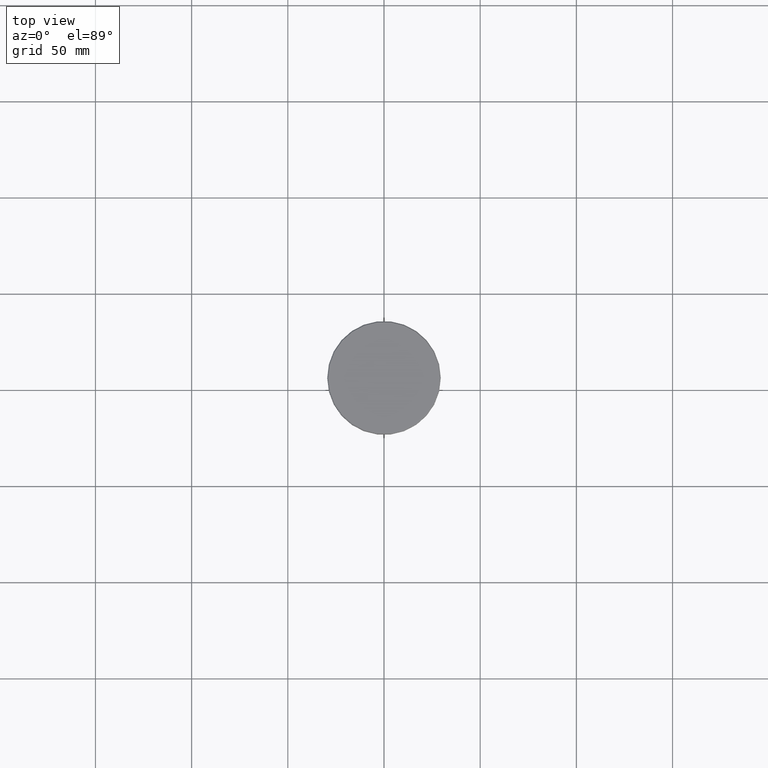
[diagram: clean part render]
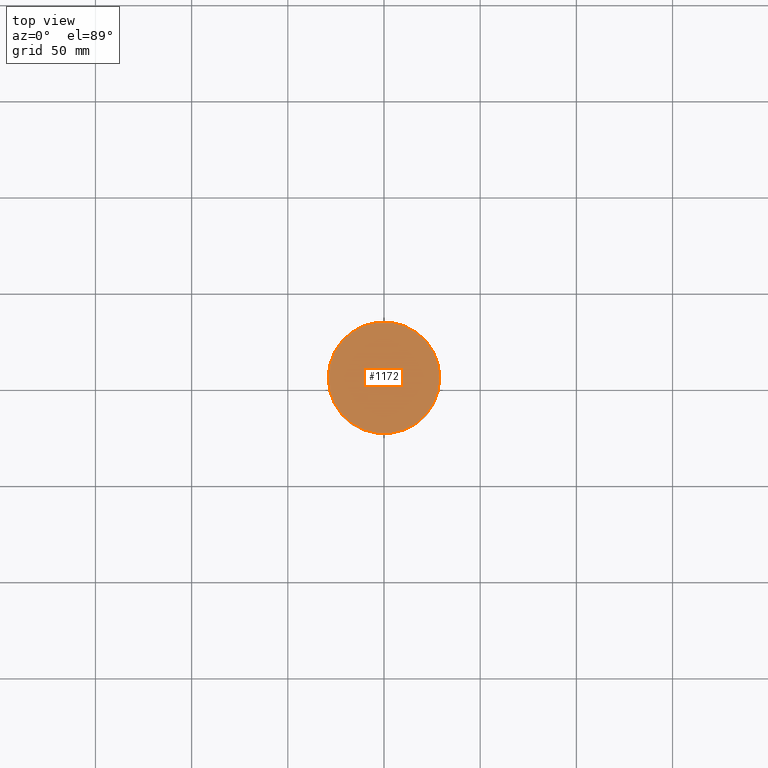
[diagram: same view with one face highlighted and labeled with its STEP entity id]
A machine part, top view. The second image highlights one B-rep face of the part: STEP entity #1172.
In plain terms, the highlighted planar face has unit normal (0, -0, 1).
Its self-contained STEP definition (entity closure, byte-faithful):
#10 = DIRECTION ( 'NONE',  ( 1.000000000000000000, 0.000000000000000000, 0.000000000000000000 ) ) ;
#18 = AXIS2_PLACEMENT_3D ( 'NONE', #1114, #642, #138 ) ;
#38 = AXIS2_PLACEMENT_3D ( 'NONE', #148, #929, #121 ) ;
#121 = DIRECTION ( 'NONE',  ( 1.000000000000000000, 0.000000000000000000, 0.000000000000000000 ) ) ;
#138 = DIRECTION ( 'NONE',  ( 1.000000000000000000, 0.000000000000000000, 0.000000000000000000 ) ) ;
#148 = CARTESIAN_POINT ( 'NONE',  ( 0.000000000000000000, 0.000000000000000000, 0.000000000000000000 ) ) ;
#196 = DIRECTION ( 'NONE',  ( -0.000000000000000000, -0.000000000000000000, 1.000000000000000000 ) ) ;
#204 = CARTESIAN_POINT ( 'NONE',  ( 0.000000000000000000, 0.000000000000000000, 0.000000000000000000 ) ) ;
#243 = ORIENTED_EDGE ( 'NONE', *, *, #612, .T. ) ;
#389 = PLANE ( 'NONE',  #18 ) ;
#396 = EDGE_LOOP ( 'NONE', ( #1181, #243 ) ) ;
#495 = VERTEX_POINT ( 'NONE', #1006 ) ;
#520 = VERTEX_POINT ( 'NONE', #762 ) ;
#612 = EDGE_CURVE ( 'NONE', #520, #495, #1041, .T. ) ;
#642 = DIRECTION ( 'NONE',  ( 0.000000000000000000, -0.000000000000000000, 1.000000000000000000 ) ) ;
#673 = AXIS2_PLACEMENT_3D ( 'NONE', #204, #196, #10 ) ;
#753 = EDGE_CURVE ( 'NONE', #495, #520, #841, .T. ) ;
#762 = CARTESIAN_POINT ( 'NONE',  ( 29.00000000000002487, 3.582091887506009394E-15, 0.000000000000000000 ) ) ;
#841 = CIRCLE ( 'NONE', #673, 29.00000000000002487 ) ;
#920 = FACE_OUTER_BOUND ( 'NONE', #396, .T. ) ;
#929 = DIRECTION ( 'NONE',  ( -0.000000000000000000, -0.000000000000000000, 1.000000000000000000 ) ) ;
#1006 = CARTESIAN_POINT ( 'NONE',  ( -29.00000000000002487, 0.000000000000000000, 0.000000000000000000 ) ) ;
#1041 = CIRCLE ( 'NONE', #38, 29.00000000000002487 ) ;
#1114 = CARTESIAN_POINT ( 'NONE',  ( 0.000000000000000000, 0.000000000000000000, 0.000000000000000000 ) ) ;
#1172 = ADVANCED_FACE ( 'NONE', ( #920 ), #389, .T. ) ;
#1181 = ORIENTED_EDGE ( 'NONE', *, *, #753, .T. ) ;